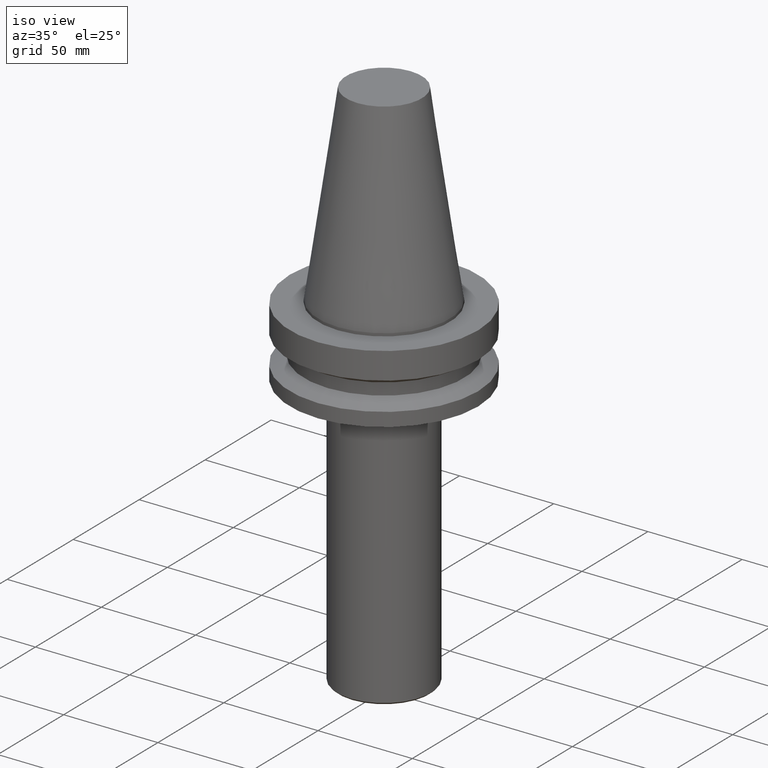
[diagram: clean part render]
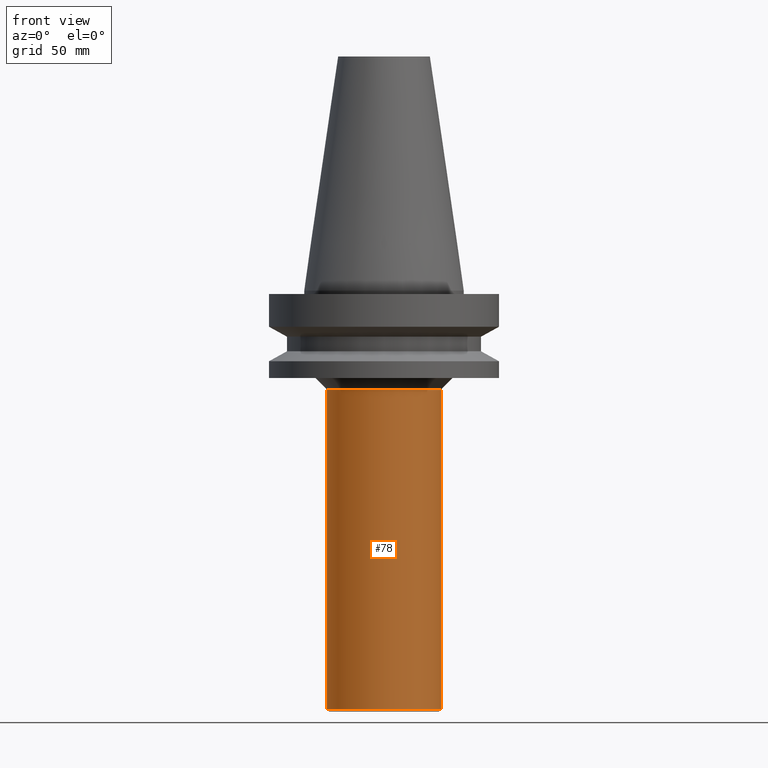
[diagram: tour spotlight — one face highlighted and labeled with its STEP entity id]
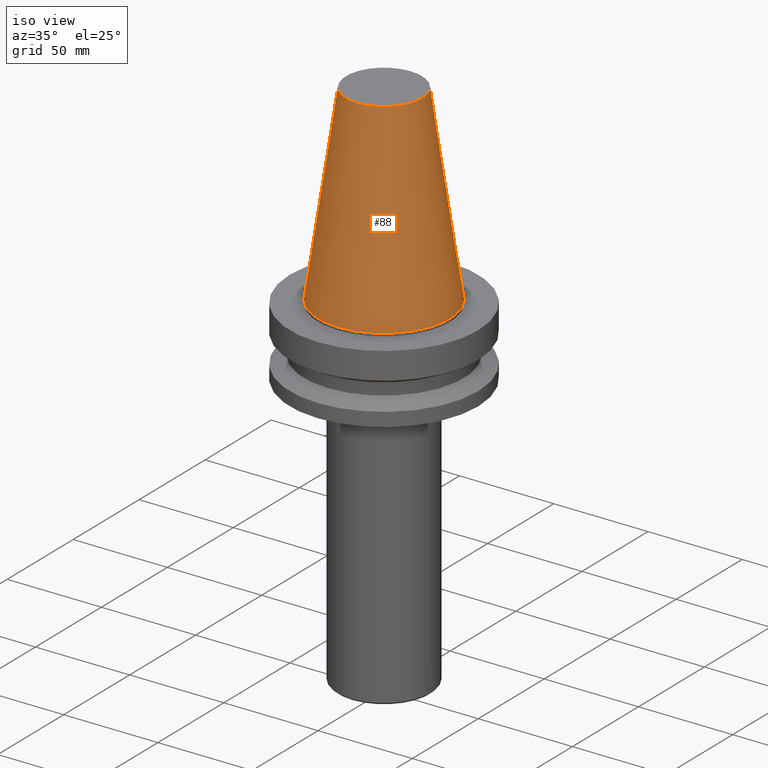
[diagram: tour spotlight — one face highlighted and labeled with its STEP entity id]
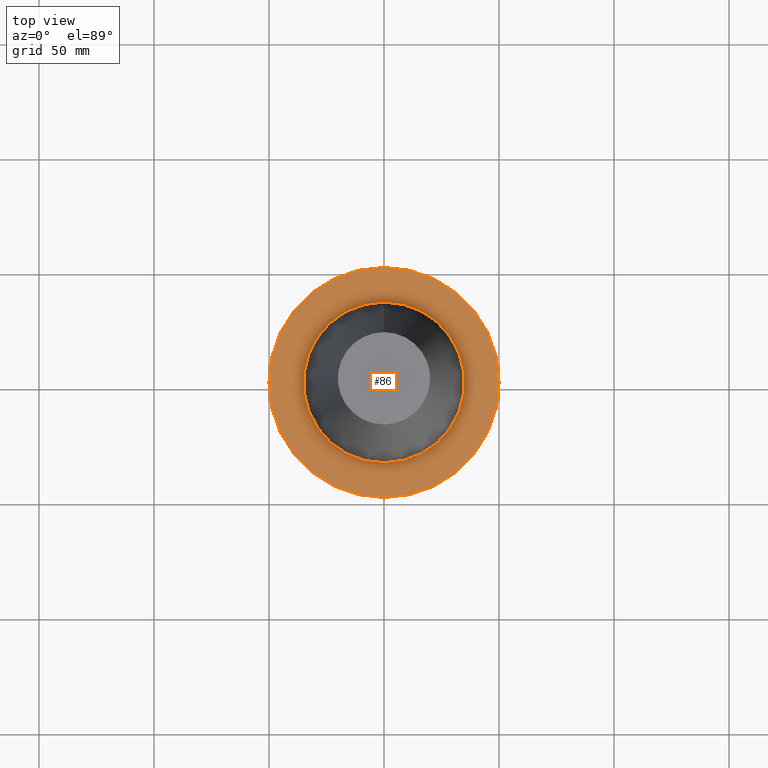
[diagram: tour spotlight — one face highlighted and labeled with its STEP entity id]
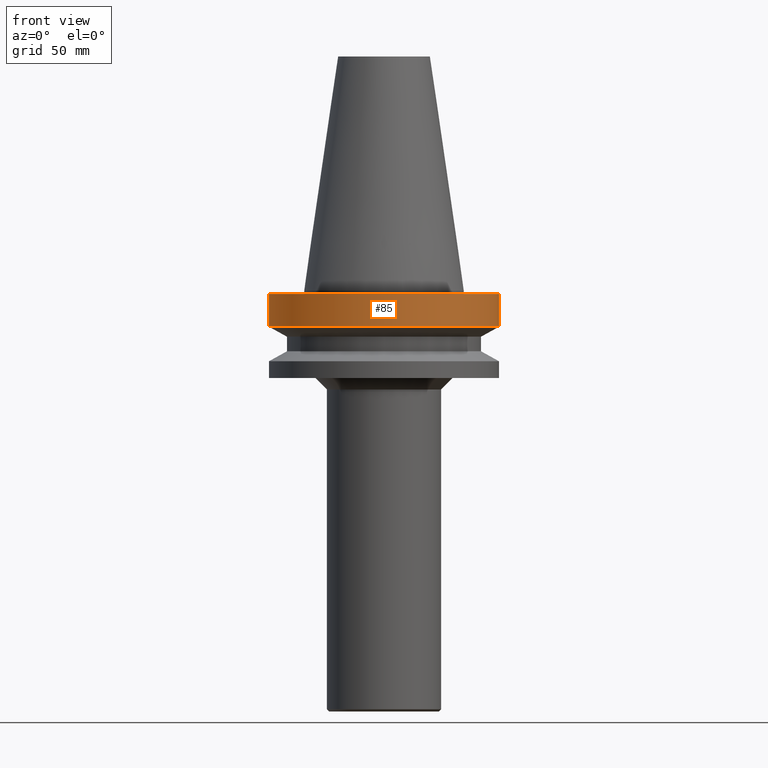
[diagram: tour spotlight — one face highlighted and labeled with its STEP entity id]
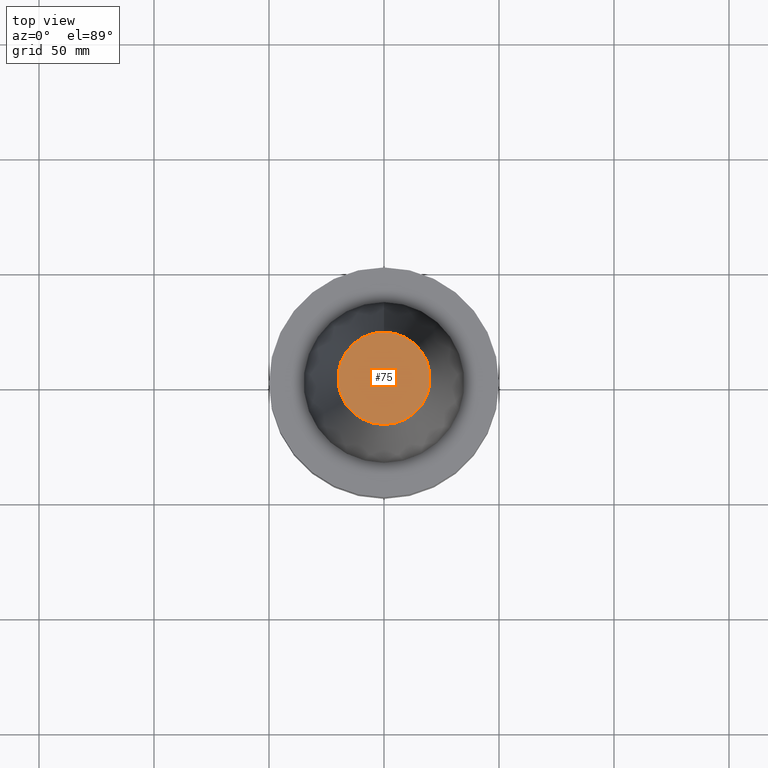
[diagram: tour spotlight — one face highlighted and labeled with its STEP entity id]
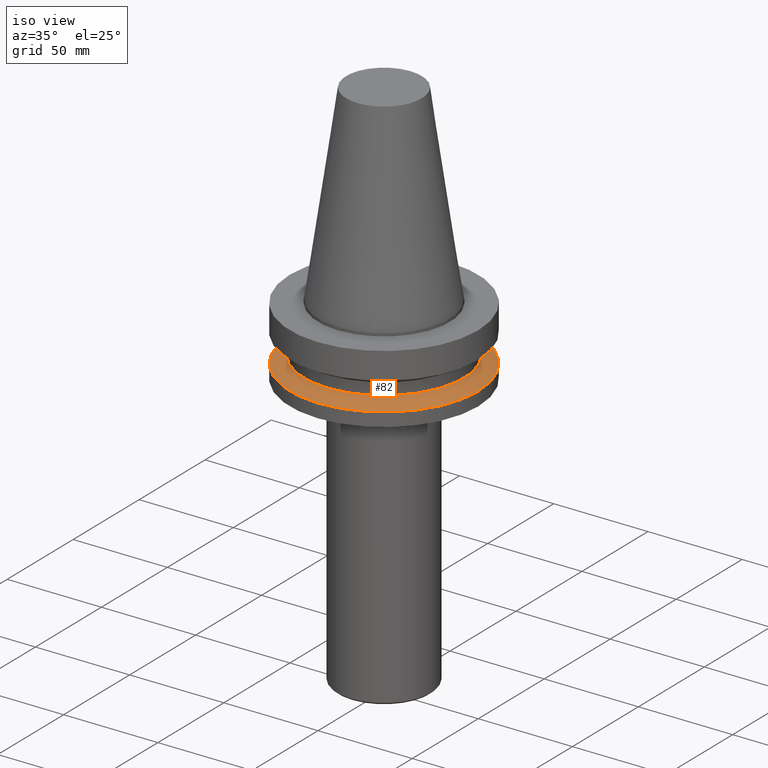
[diagram: tour spotlight — one face highlighted and labeled with its STEP entity id]
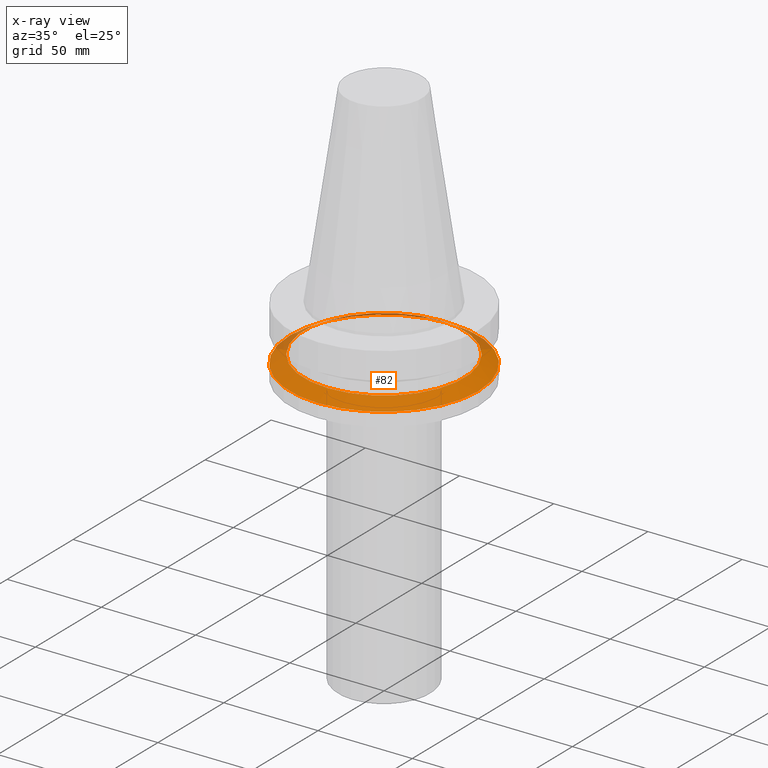
[diagram: x-ray of the same camera — body ghosted, this tour face saturated]
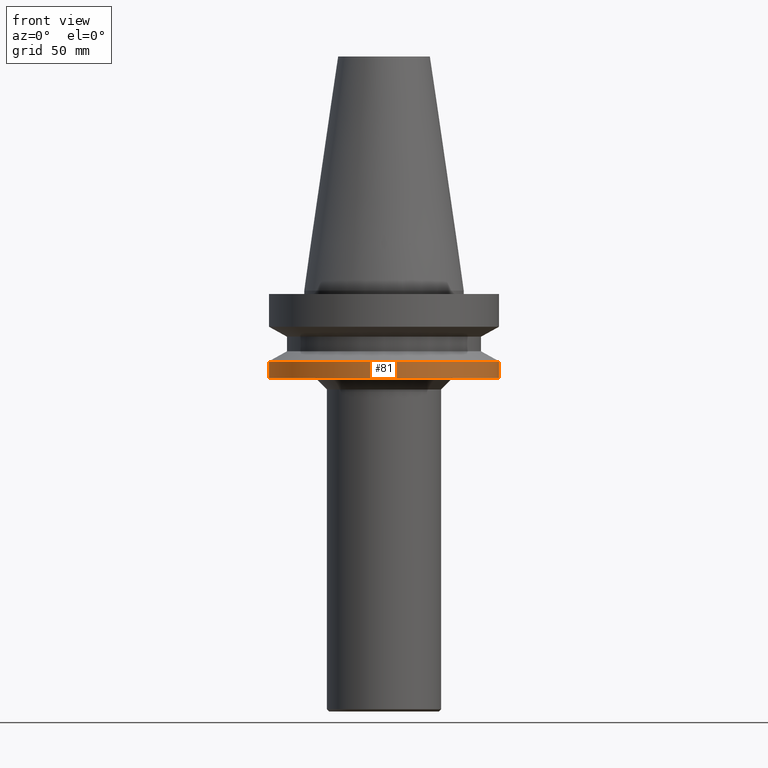
[diagram: tour spotlight — one face highlighted and labeled with its STEP entity id]
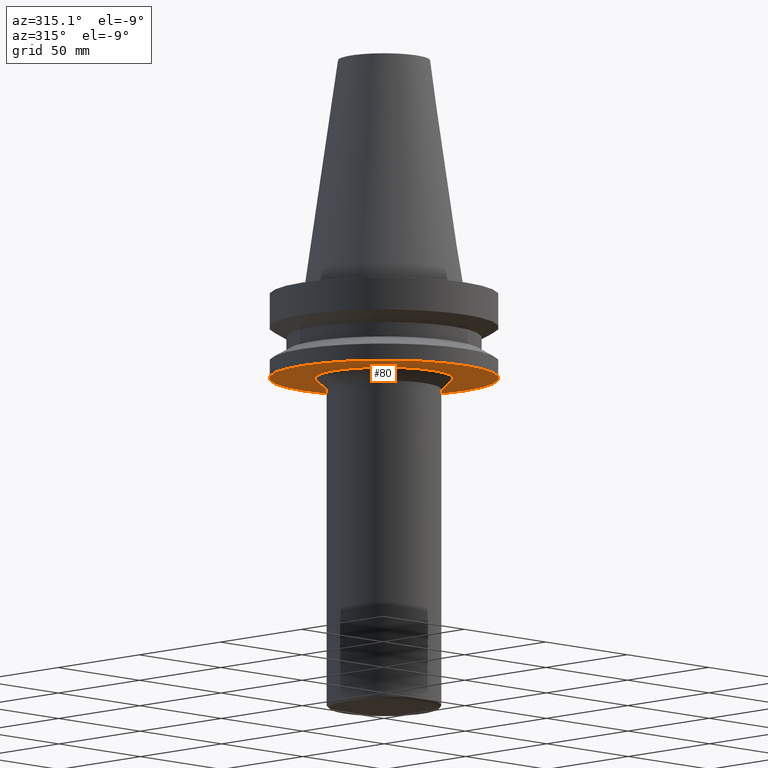
[diagram: tour spotlight — one face highlighted and labeled with its STEP entity id]
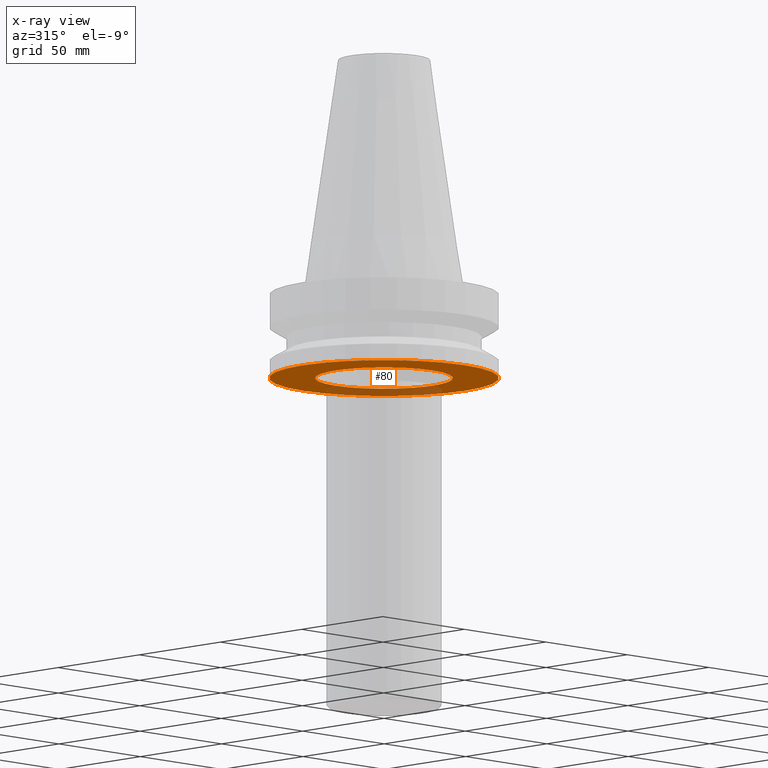
[diagram: x-ray of the same camera — body ghosted, this tour face saturated]
A machine part: a face-by-face anatomy tour. The part has 14 B-rep faces; the first image is the clean iso view, then the 8 largest visible faces are spotlighted one at a time (largest first), each with its STEP entity span.

Face 1 — front view, entity #78. In plain terms, the highlighted cylindrical surface (bore or boss wall) has radius 25 mm, axis along (0, 0, -1).
Definition (entity closure, byte-faithful):
#78=ADVANCED_FACE('',(#97,#98),#99,.T.);
#97=FACE_BOUND('',#137,.T.);
#98=FACE_BOUND('',#138,.T.);
#99=CYLINDRICAL_SURFACE('',#139,25.0);
#137=EDGE_LOOP('',(#183));
#138=EDGE_LOOP('',(#184));
#139=AXIS2_PLACEMENT_3D('',#185,#186,#187);
#183=ORIENTED_EDGE('',*,*,#241,.F.);
#184=ORIENTED_EDGE('',*,*,#240,.T.);
#185=CARTESIAN_POINT('',(6.8886382452039E-015,1.37772764904078E-014,-112.500000000001));
#186=DIRECTION('',(6.12323399573677E-017,1.22464679914735E-016,-1.0));
#187=DIRECTION('',(-1.23259516440783E-032,1.0,1.22464679914735E-016));
#240=EDGE_CURVE('',#255,#255,#256,.T.);
#241=EDGE_CURVE('',#257,#257,#258,.T.);
#255=VERTEX_POINT('',#281);
#256=CIRCLE('',#282,25.0);
#257=VERTEX_POINT('',#283);
#258=CIRCLE('',#284,25.0);
#281=CARTESIAN_POINT('',(1.1144285872241E-014,25.0,-182.000000000001));
#282=AXIS2_PLACEMENT_3D('',#309,#310,#311);
#283=CARTESIAN_POINT('',(2.63299061816685E-015,25.0,-43.0000000000006));
#284=AXIS2_PLACEMENT_3D('',#312,#313,#314);
#309=CARTESIAN_POINT('',(1.1144285872241E-014,2.22885717444819E-014,-182.000000000001));
#310=DIRECTION('',(-6.12323399573677E-017,-1.22464679914735E-016,1.0));
#311=DIRECTION('',(-1.23259516440783E-032,1.0,1.22464679914735E-016));
#312=CARTESIAN_POINT('',(2.63299061816685E-015,5.26598123633369E-015,-43.0000000000006));
#313=DIRECTION('',(-6.12323399573677E-017,-1.22464679914735E-016,1.0));
#314=DIRECTION('',(-1.23259516440783E-032,1.0,1.22464679914735E-016));

Face 2 — iso view, entity #88. In plain terms, the highlighted conical surface has half-angle 8.297 deg.
Definition (entity closure, byte-faithful):
#88=ADVANCED_FACE('',(#127,#128),#129,.T.);
#127=FACE_BOUND('',#167,.T.);
#128=FACE_BOUND('',#168,.T.);
#129=CONICAL_SURFACE('',#169,27.5020833333338,0.144812498238939);
#167=EDGE_LOOP('',(#233));
#168=EDGE_LOOP('',(#234));
#169=AXIS2_PLACEMENT_3D('',#235,#236,#237);
#233=ORIENTED_EDGE('',*,*,#238,.F.);
#234=ORIENTED_EDGE('',*,*,#250,.T.);
#235=CARTESIAN_POINT('',(-3.11672610383001E-015,-6.23345220766003E-015,50.9));
#236=DIRECTION('',(6.12323399573677E-017,1.22464679914735E-016,-1.0));
#237=DIRECTION('',(-1.23259516440783E-032,1.0,1.22464679914735E-016));
#238=EDGE_CURVE('',#251,#251,#252,.T.);
#250=EDGE_CURVE('',#275,#275,#276,.T.);
#251=VERTEX_POINT('',#277);
#252=CIRCLE('',#278,20.0791666666671);
#275=VERTEX_POINT('',#301);
#276=CIRCLE('',#302,34.9250000000004);
#277=CARTESIAN_POINT('',(-6.23345220766003E-015,20.0791666666671,101.8));
#278=AXIS2_PLACEMENT_3D('',#303,#304,#305);
#301=CARTESIAN_POINT('',(-4.3048386116944E-031,34.9250000000004,4.27707894602218E-015));
#302=AXIS2_PLACEMENT_3D('',#339,#340,#341);
#303=CARTESIAN_POINT('',(-6.23345220766003E-015,-1.24669044153201E-014,101.8));
#304=DIRECTION('',(-6.12323399573677E-017,-1.22464679914735E-016,1.0));
#305=DIRECTION('',(-1.23259516440783E-032,1.0,1.22464679914735E-016));
#339=CARTESIAN_POINT('',(0.0,0.0,0.0));
#340=DIRECTION('',(-6.12323399573677E-017,-1.22464679914735E-016,1.0));
#341=DIRECTION('',(-1.23259516440783E-032,1.0,1.22464679914735E-016));

Face 3 — top view, entity #86. In plain terms, the highlighted planar face has unit normal (-0, 0, 1).
Definition (entity closure, byte-faithful):
#86=ADVANCED_FACE('',(#121,#122),#123,.T.);
#121=FACE_BOUND('',#161,.T.);
#122=FACE_OUTER_BOUND('',#162,.T.);
#123=PLANE('',#163);
#161=EDGE_LOOP('',(#223));
#162=EDGE_LOOP('',(#224));
#163=AXIS2_PLACEMENT_3D('',#225,#226,#227);
#223=ORIENTED_EDGE('',*,*,#249,.F.);
#224=ORIENTED_EDGE('',*,*,#248,.T.);
#225=CARTESIAN_POINT('',(9.18485099361693E-017,42.4625000000002,-1.50000000000193));
#226=DIRECTION('',(-6.12323399573677E-017,3.69495267723969E-013,1.0));
#227=DIRECTION('',(2.26202326931819E-029,1.0,-3.69495267723969E-013));
#248=EDGE_CURVE('',#271,#271,#272,.T.);
#249=EDGE_CURVE('',#273,#273,#274,.T.);
#271=VERTEX_POINT('',#297);
#272=CIRCLE('',#298,50.0000000000005);
#273=VERTEX_POINT('',#299);
#274=CIRCLE('',#300,34.9249999999999);
#297=CARTESIAN_POINT('',(9.18485099363398E-017,50.0000000000005,-1.50000000000471));
#298=AXIS2_PLACEMENT_3D('',#333,#334,#335);
#299=CARTESIAN_POINT('',(9.18485099359988E-017,34.9249999999999,-1.49999999999914));
#300=AXIS2_PLACEMENT_3D('',#336,#337,#338);
#333=CARTESIAN_POINT('',(9.18485099363404E-017,1.83697019872681E-016,-1.50000000000472));
#334=DIRECTION('',(-6.12323399573677E-017,-1.22464679914735E-016,1.0));
#335=DIRECTION('',(-1.23259516440783E-032,1.0,1.22464679914735E-016));
#336=CARTESIAN_POINT('',(9.18485099359993E-017,1.83697019871999E-016,-1.49999999999915));
#337=DIRECTION('',(-6.12323399573676E-017,-1.22464679914735E-016,1.0));
#338=DIRECTION('',(-1.23259516440783E-032,1.0,1.22464679914735E-016));

Face 4 — front view, entity #85. In plain terms, the highlighted cylindrical surface (bore or boss wall) has radius 50 mm, axis along (0, 0, -1).
Definition (entity closure, byte-faithful):
#85=ADVANCED_FACE('',(#118,#119),#120,.T.);
#118=FACE_BOUND('',#158,.T.);
#119=FACE_BOUND('',#159,.T.);
#120=CYLINDRICAL_SURFACE('',#160,50.0000000000005);
#158=EDGE_LOOP('',(#218));
#159=EDGE_LOOP('',(#219));
#160=AXIS2_PLACEMENT_3D('',#220,#221,#222);
#218=ORIENTED_EDGE('',*,*,#248,.F.);
#219=ORIENTED_EDGE('',*,*,#247,.T.);
#220=CARTESIAN_POINT('',(5.26598123633504E-016,1.05319624726701E-015,-8.60000000000232));
#221=DIRECTION('',(6.12323399573677E-017,1.22464679914735E-016,-1.0));
#222=DIRECTION('',(-1.23259516440783E-032,1.0,1.22464679914735E-016));
#247=EDGE_CURVE('',#269,#269,#270,.T.);
#248=EDGE_CURVE('',#271,#271,#272,.T.);
#269=VERTEX_POINT('',#295);
#270=CIRCLE('',#296,50.0000000000005);
#271=VERTEX_POINT('',#297);
#272=CIRCLE('',#298,50.0000000000005);
#295=CARTESIAN_POINT('',(9.61347737330667E-016,50.0000000000005,-15.6999999999999));
#296=AXIS2_PLACEMENT_3D('',#330,#331,#332);
#297=CARTESIAN_POINT('',(9.18485099363398E-017,50.0000000000005,-1.50000000000471));
#298=AXIS2_PLACEMENT_3D('',#333,#334,#335);
#330=CARTESIAN_POINT('',(9.61347737330668E-016,1.92269547466134E-015,-15.6999999999999));
#331=DIRECTION('',(-6.12323399573677E-017,-1.22464679914735E-016,1.0));
#332=DIRECTION('',(-1.23259516440783E-032,1.0,1.22464679914735E-016));
#333=CARTESIAN_POINT('',(9.18485099363404E-017,1.83697019872681E-016,-1.50000000000472));
#334=DIRECTION('',(-6.12323399573677E-017,-1.22464679914735E-016,1.0));
#335=DIRECTION('',(-1.23259516440783E-032,1.0,1.22464679914735E-016));

Face 5 — top view, entity #75. In plain terms, the highlighted planar face has unit normal (-0, -0, 1).
Definition (entity closure, byte-faithful):
#75=ADVANCED_FACE('',(#90),#91,.T.);
#90=FACE_OUTER_BOUND('',#130,.T.);
#91=PLANE('',#131);
#130=EDGE_LOOP('',(#170));
#131=AXIS2_PLACEMENT_3D('',#171,#172,#173);
#170=ORIENTED_EDGE('',*,*,#238,.T.);
#171=CARTESIAN_POINT('',(-6.23345220766003E-015,10.0395833333335,101.8));
#172=DIRECTION('',(-6.12323399573677E-017,-1.22464679914735E-016,1.0));
#173=DIRECTION('',(-1.23259516440783E-032,1.0,1.22464679914735E-016));
#238=EDGE_CURVE('',#251,#251,#252,.T.);
#251=VERTEX_POINT('',#277);
#252=CIRCLE('',#278,20.0791666666671);
#277=CARTESIAN_POINT('',(-6.23345220766003E-015,20.0791666666671,101.8));
#278=AXIS2_PLACEMENT_3D('',#303,#304,#305);
#303=CARTESIAN_POINT('',(-6.23345220766003E-015,-1.24669044153201E-014,101.8));
#304=DIRECTION('',(-6.12323399573677E-017,-1.22464679914735E-016,1.0));
#305=DIRECTION('',(-1.23259516440783E-032,1.0,1.22464679914735E-016));

Face 6 — iso view, entity #82. An x-ray twin of the same camera follows (body ghosted, this face saturated) — the face is partly hidden behind the body. In plain terms, the highlighted conical surface has half-angle 60 deg.
Definition (entity closure, byte-faithful):
#82=ADVANCED_FACE('',(#109,#110),#111,.T.);
#109=FACE_BOUND('',#149,.T.);
#110=FACE_BOUND('',#150,.T.);
#111=CONICAL_SURFACE('',#151,46.2500000000005,1.0471975511966);
#149=EDGE_LOOP('',(#203));
#150=EDGE_LOOP('',(#204));
#151=AXIS2_PLACEMENT_3D('',#205,#206,#207);
#203=ORIENTED_EDGE('',*,*,#245,.F.);
#204=ORIENTED_EDGE('',*,*,#244,.T.);
#205=CARTESIAN_POINT('',(1.74726093185057E-015,3.49452186370114E-015,-28.5349364905388));
#206=DIRECTION('',(6.12323399573677E-017,1.22464679914735E-016,-1.0));
#207=DIRECTION('',(-1.23259516440783E-032,1.0,1.22464679914735E-016));
#244=EDGE_CURVE('',#263,#263,#264,.T.);
#245=EDGE_CURVE('',#265,#265,#266,.T.);
#263=VERTEX_POINT('',#289);
#264=CIRCLE('',#290,50.0000000000005);
#265=VERTEX_POINT('',#291);
#266=CIRCLE('',#292,42.5000000000004);
#289=CARTESIAN_POINT('',(1.87983283669118E-015,50.0000000000005,-30.6999999999999));
#290=AXIS2_PLACEMENT_3D('',#321,#322,#323);
#291=CARTESIAN_POINT('',(1.61468902700995E-015,42.5000000000004,-26.3698729810777));
#292=AXIS2_PLACEMENT_3D('',#324,#325,#326);
#321=CARTESIAN_POINT('',(1.87983283669118E-015,3.75966567338236E-015,-30.6999999999999));
#322=DIRECTION('',(-6.12323399573677E-017,-1.22464679914735E-016,1.0));
#323=DIRECTION('',(-1.23259516440783E-032,1.0,1.22464679914735E-016));
#324=CARTESIAN_POINT('',(1.61468902700995E-015,3.22937805401991E-015,-26.3698729810777));
#325=DIRECTION('',(-6.12323399573677E-017,-1.22464679914735E-016,1.0));
#326=DIRECTION('',(-1.23259516440783E-032,1.0,1.22464679914735E-016));

Face 7 — front view, entity #81. In plain terms, the highlighted cylindrical surface (bore or boss wall) has radius 50 mm, axis along (0, 0, -1).
Definition (entity closure, byte-faithful):
#81=ADVANCED_FACE('',(#106,#107),#108,.T.);
#106=FACE_BOUND('',#146,.T.);
#107=FACE_BOUND('',#147,.T.);
#108=CYLINDRICAL_SURFACE('',#148,50.0000000000005);
#146=EDGE_LOOP('',(#198));
#147=EDGE_LOOP('',(#199));
#148=AXIS2_PLACEMENT_3D('',#200,#201,#202);
#198=ORIENTED_EDGE('',*,*,#244,.F.);
#199=ORIENTED_EDGE('',*,*,#243,.T.);
#200=CARTESIAN_POINT('',(2.1033308775356E-015,4.20666175507119E-015,-34.3500000000003));
#201=DIRECTION('',(6.12323399573677E-017,1.22464679914735E-016,-1.0));
#202=DIRECTION('',(-1.23259516440783E-032,1.0,1.22464679914735E-016));
#243=EDGE_CURVE('',#261,#261,#262,.T.);
#244=EDGE_CURVE('',#263,#263,#264,.T.);
#261=VERTEX_POINT('',#287);
#262=CIRCLE('',#288,50.0000000000005);
#263=VERTEX_POINT('',#289);
#264=CIRCLE('',#290,50.0000000000005);
#287=CARTESIAN_POINT('',(2.32682891838001E-015,50.0000000000005,-38.0000000000006));
#288=AXIS2_PLACEMENT_3D('',#318,#319,#320);
#289=CARTESIAN_POINT('',(1.87983283669118E-015,50.0000000000005,-30.6999999999999));
#290=AXIS2_PLACEMENT_3D('',#321,#322,#323);
#318=CARTESIAN_POINT('',(2.32682891838001E-015,4.65365783676002E-015,-38.0000000000006));
#319=DIRECTION('',(-6.12323399573677E-017,-1.22464679914735E-016,1.0));
#320=DIRECTION('',(-1.23259516440783E-032,1.0,1.22464679914735E-016));
#321=CARTESIAN_POINT('',(1.87983283669118E-015,3.75966567338236E-015,-30.6999999999999));
#322=DIRECTION('',(-6.12323399573677E-017,-1.22464679914735E-016,1.0));
#323=DIRECTION('',(-1.23259516440783E-032,1.0,1.22464679914735E-016));

Face 8 — auxiliary view, entity #80. An x-ray twin of the same camera follows (body ghosted, this face saturated) — the face is partly hidden behind the body. In plain terms, the highlighted planar face has unit normal (0, 0, -1).
Definition (entity closure, byte-faithful):
#80=ADVANCED_FACE('',(#103,#104),#105,.T.);
#103=FACE_OUTER_BOUND('',#143,.T.);
#104=FACE_BOUND('',#144,.T.);
#105=PLANE('',#145);
#143=EDGE_LOOP('',(#193));
#144=EDGE_LOOP('',(#194));
#145=AXIS2_PLACEMENT_3D('',#195,#196,#197);
#193=ORIENTED_EDGE('',*,*,#243,.F.);
#194=ORIENTED_EDGE('',*,*,#242,.T.);
#195=CARTESIAN_POINT('',(2.32682891838001E-015,40.0000000000002,-38.0000000000006));
#196=DIRECTION('',(6.12323399573677E-017,1.22464679914735E-016,-1.0));
#197=DIRECTION('',(1.23259516440783E-032,-1.0,-1.22464679914735E-016));
#242=EDGE_CURVE('',#259,#259,#260,.T.);
#243=EDGE_CURVE('',#261,#261,#262,.T.);
#259=VERTEX_POINT('',#285);
#260=CIRCLE('',#286,30.0);
#261=VERTEX_POINT('',#287);
#262=CIRCLE('',#288,50.0000000000005);
#285=CARTESIAN_POINT('',(2.32682891838001E-015,30.0,-38.0000000000006));
#286=AXIS2_PLACEMENT_3D('',#315,#316,#317);
#287=CARTESIAN_POINT('',(2.32682891838001E-015,50.0000000000005,-38.0000000000006));
#288=AXIS2_PLACEMENT_3D('',#318,#319,#320);
#315=CARTESIAN_POINT('',(2.32682891838001E-015,4.65365783676002E-015,-38.0000000000006));
#316=DIRECTION('',(-6.12323399573677E-017,-1.22464679914735E-016,1.0));
#317=DIRECTION('',(-1.23259516440783E-032,1.0,1.22464679914735E-016));
#318=CARTESIAN_POINT('',(2.32682891838001E-015,4.65365783676002E-015,-38.0000000000006));
#319=DIRECTION('',(-6.12323399573677E-017,-1.22464679914735E-016,1.0));
#320=DIRECTION('',(-1.23259516440783E-032,1.0,1.22464679914735E-016));